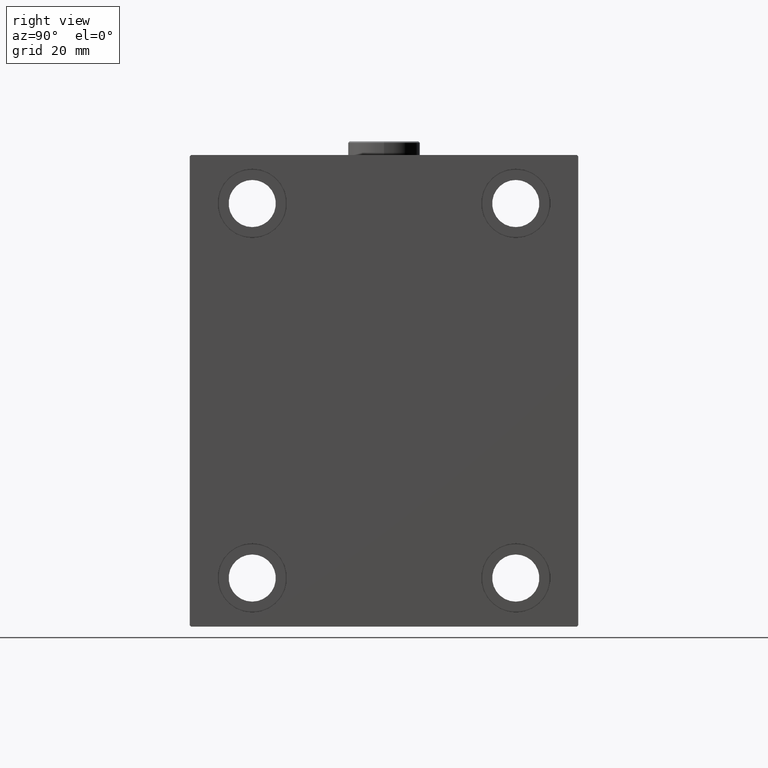
[diagram: clean part render]
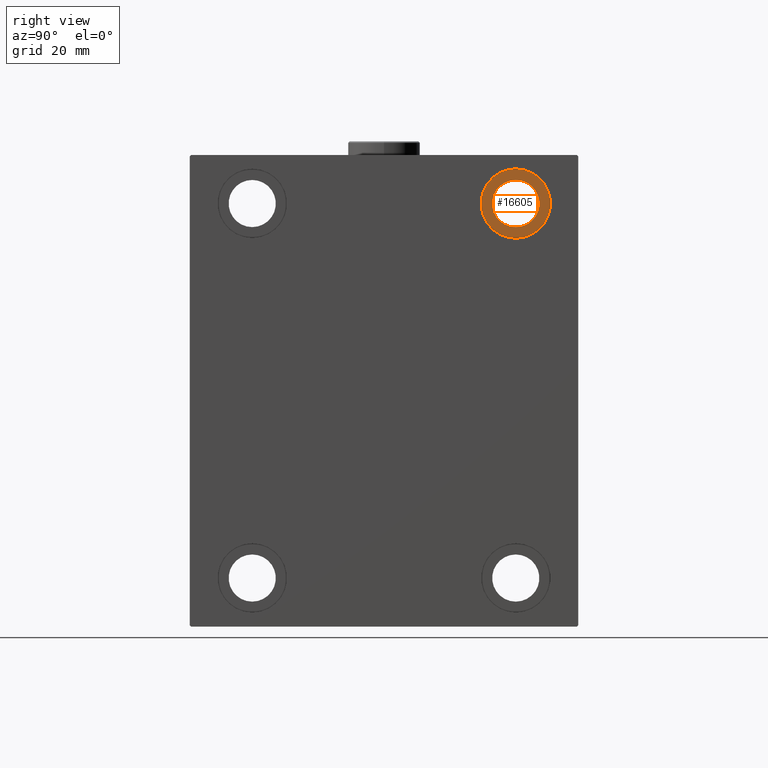
[diagram: same view with one face highlighted and labeled with its STEP entity id]
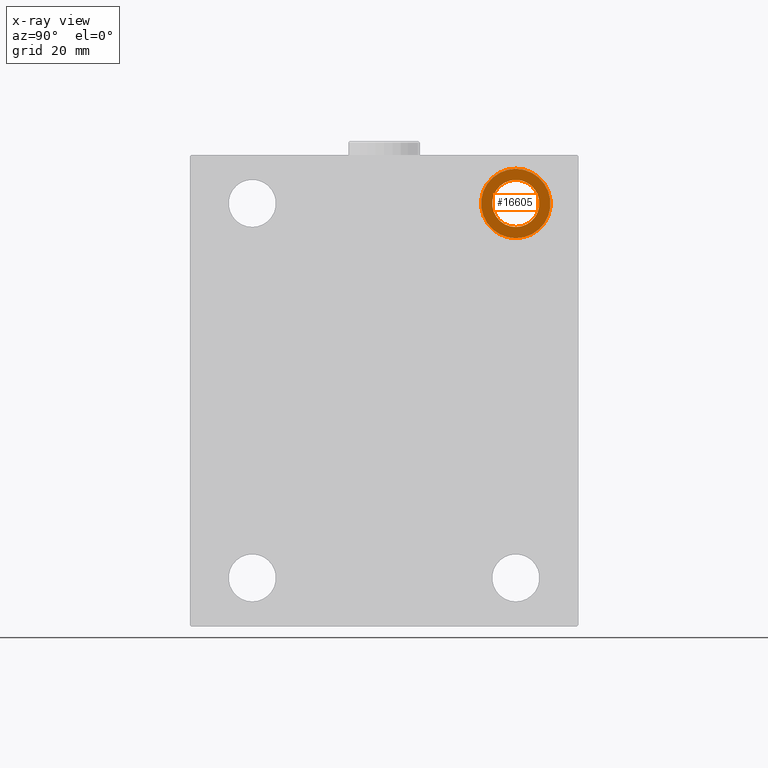
[diagram: x-ray of the same camera — body ghosted, the highlighted face saturated]
A machine part, right view. The second image highlights one B-rep face of the part: STEP entity #16605.
The next image is the same camera in x-ray: the body ghosted, the highlighted face saturated — about 0% of this face is hidden behind the body in this view.
In plain terms, the highlighted planar face has unit normal (1, 0, 0).
Its self-contained STEP definition (entity closure, byte-faithful):
#29 = CIRCLE ( 'NONE', #29846, 8.500000000000007105 ) ;
#2822 = PLANE ( 'NONE',  #9514 ) ;
#2943 = AXIS2_PLACEMENT_3D ( 'NONE', #34221, #5738, #40588 ) ;
#3272 = FACE_BOUND ( 'NONE', #14783, .T. ) ;
#3909 = DIRECTION ( 'NONE',  ( 0.000000000000000000, 0.000000000000000000, -1.000000000000000000 ) ) ;
#5738 = DIRECTION ( 'NONE',  ( -1.000000000000000000, -0.000000000000000000, -0.000000000000000000 ) ) ;
#6697 = DIRECTION ( 'NONE',  ( 0.000000000000000000, 0.000000000000000000, 1.000000000000000000 ) ) ;
#7275 = DIRECTION ( 'NONE',  ( -1.000000000000000000, -0.000000000000000000, -0.000000000000000000 ) ) ;
#9514 = AXIS2_PLACEMENT_3D ( 'NONE', #16737, #44274, #6697 ) ;
#9685 = ORIENTED_EDGE ( 'NONE', *, *, #35129, .F. ) ;
#10309 = DIRECTION ( 'NONE',  ( -1.000000000000000000, -0.000000000000000000, -0.000000000000000000 ) ) ;
#12531 = ORIENTED_EDGE ( 'NONE', *, *, #16976, .F. ) ;
#14783 = EDGE_LOOP ( 'NONE', ( #45002, #16083 ) ) ;
#15980 = EDGE_CURVE ( 'NONE', #39685, #23072, #29, .T. ) ;
#16083 = ORIENTED_EDGE ( 'NONE', *, *, #26959, .T. ) ;
#16278 = FACE_OUTER_BOUND ( 'NONE', #16873, .T. ) ;
#16605 = ADVANCED_FACE ( 'NONE', ( #16278, #3272 ), #2822, .T. ) ;
#16737 = CARTESIAN_POINT ( 'NONE',  ( 108.0000000000000000, 0.000000000000000000, 0.000000000000000000 ) ) ;
#16873 = EDGE_LOOP ( 'NONE', ( #12531, #9685 ) ) ;
#16976 = EDGE_CURVE ( 'NONE', #34811, #38036, #43683, .T. ) ;
#20582 = CARTESIAN_POINT ( 'NONE',  ( 108.0000000000000000, 47.50000000000000711, 76.00000000000001421 ) ) ;
#21189 = DIRECTION ( 'NONE',  ( 0.000000000000000000, 0.000000000000000000, 1.000000000000000000 ) ) ;
#22142 = AXIS2_PLACEMENT_3D ( 'NONE', #28688, #7275, #21189 ) ;
#23072 = VERTEX_POINT ( 'NONE', #42881 ) ;
#26959 = EDGE_CURVE ( 'NONE', #23072, #39685, #27870, .T. ) ;
#27115 = AXIS2_PLACEMENT_3D ( 'NONE', #35135, #10309, #3909 ) ;
#27870 = CIRCLE ( 'NONE', #27115, 8.500000000000007105 ) ;
#28688 = CARTESIAN_POINT ( 'NONE',  ( 108.0000000000000000, 47.50000000000000711, 67.50000000000000000 ) ) ;
#29846 = AXIS2_PLACEMENT_3D ( 'NONE', #33989, #36724, #36956 ) ;
#32366 = CARTESIAN_POINT ( 'NONE',  ( 108.0000000000000000, 47.50000000000000711, 80.00000000000001421 ) ) ;
#33989 = CARTESIAN_POINT ( 'NONE',  ( 108.0000000000000000, 47.50000000000000711, 67.50000000000000000 ) ) ;
#34221 = CARTESIAN_POINT ( 'NONE',  ( 108.0000000000000000, 47.50000000000000711, 67.50000000000000000 ) ) ;
#34811 = VERTEX_POINT ( 'NONE', #37214 ) ;
#35129 = EDGE_CURVE ( 'NONE', #38036, #34811, #41790, .T. ) ;
#35135 = CARTESIAN_POINT ( 'NONE',  ( 108.0000000000000000, 47.50000000000000711, 67.50000000000000000 ) ) ;
#36724 = DIRECTION ( 'NONE',  ( -1.000000000000000000, -0.000000000000000000, -0.000000000000000000 ) ) ;
#36956 = DIRECTION ( 'NONE',  ( 0.000000000000000000, 0.000000000000000000, -1.000000000000000000 ) ) ;
#37214 = CARTESIAN_POINT ( 'NONE',  ( 108.0000000000000000, 47.50000000000000711, 55.00000000000000000 ) ) ;
#38036 = VERTEX_POINT ( 'NONE', #32366 ) ;
#39685 = VERTEX_POINT ( 'NONE', #20582 ) ;
#40588 = DIRECTION ( 'NONE',  ( 0.000000000000000000, 0.000000000000000000, 1.000000000000000000 ) ) ;
#41790 = CIRCLE ( 'NONE', #22142, 12.50000000000001066 ) ;
#42881 = CARTESIAN_POINT ( 'NONE',  ( 108.0000000000000000, 47.50000000000000711, 59.00000000000000000 ) ) ;
#43683 = CIRCLE ( 'NONE', #2943, 12.50000000000001066 ) ;
#44274 = DIRECTION ( 'NONE',  ( 1.000000000000000000, 0.000000000000000000, -0.000000000000000000 ) ) ;
#45002 = ORIENTED_EDGE ( 'NONE', *, *, #15980, .T. ) ;